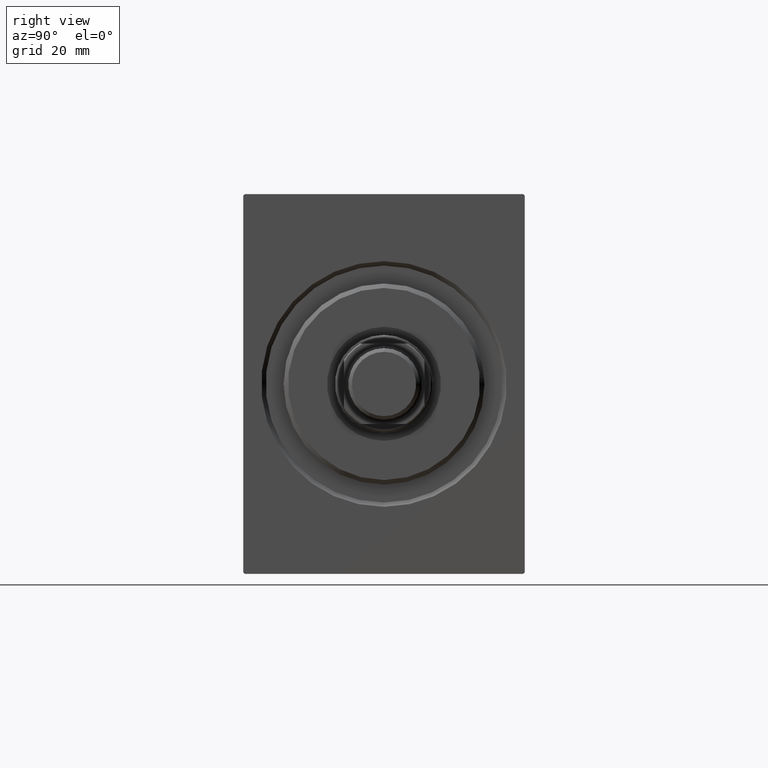
[diagram: clean part render]
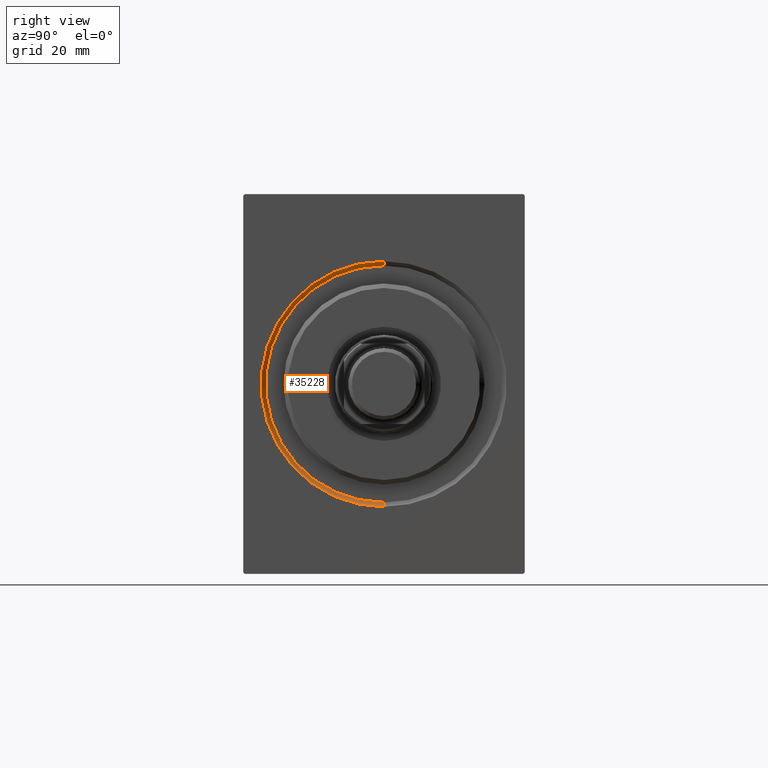
[diagram: same view with one face highlighted and labeled with its STEP entity id]
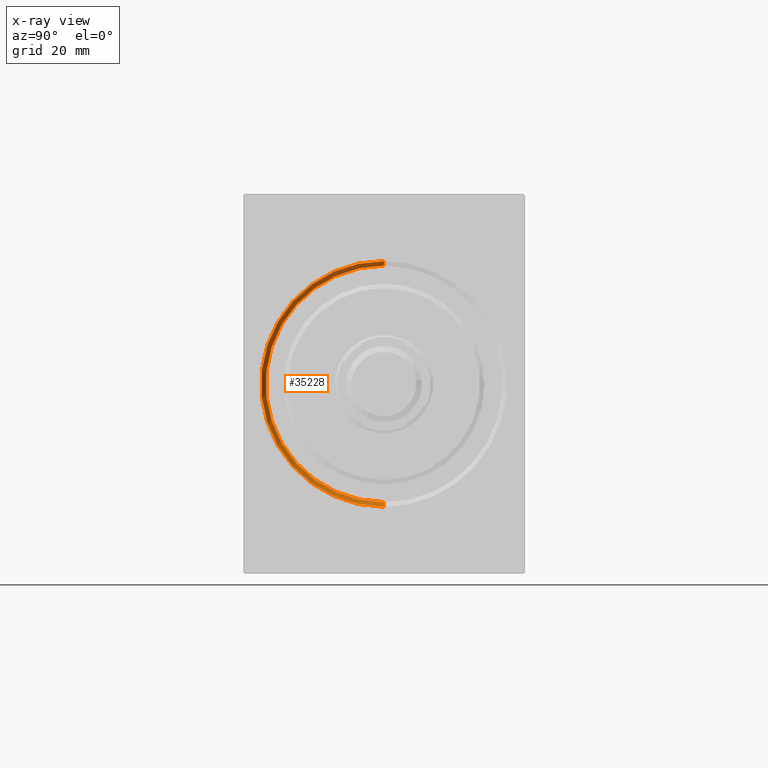
[diagram: x-ray of the same camera — body ghosted, the highlighted face saturated]
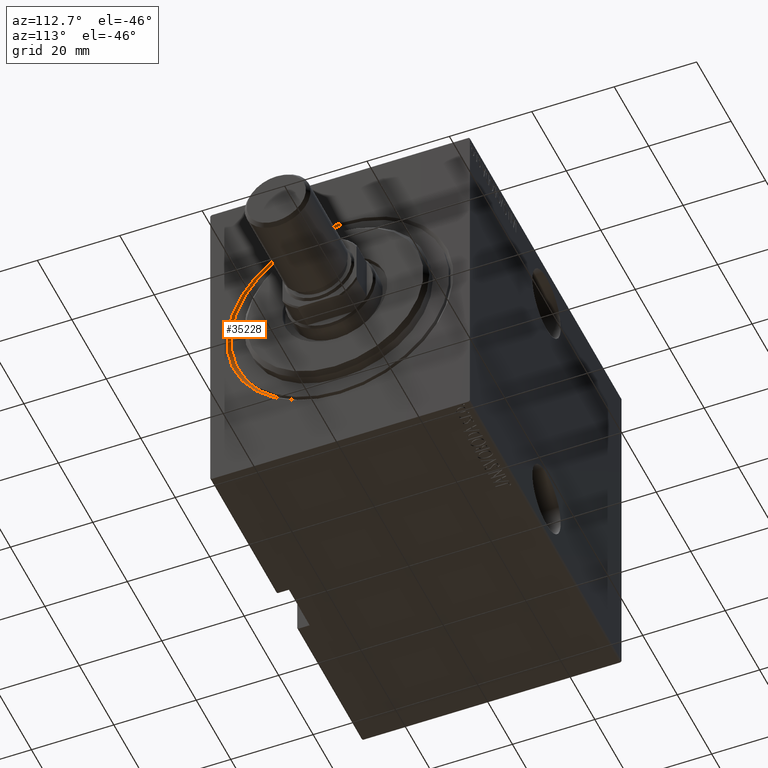
[diagram: same view with one face highlighted and labeled with its STEP entity id]
A machine part, right view. The second image highlights one B-rep face of the part: STEP entity #35228.
The next image is the same camera in x-ray: the body ghosted, the highlighted face saturated — about 0% of this face is hidden behind the body in this view.
A second angle (auxiliary view) of the same face is appended — the face is thin or edge-on in the first view.
In plain terms, the highlighted conical surface has half-angle 45 deg.
Its self-contained STEP definition (entity closure, byte-faithful):
#374 = CIRCLE ( 'NONE', #35366, 26.50000000000000355 ) ;
#1416 = DIRECTION ( 'NONE',  ( -1.000000000000000000, 0.000000000000000000, 0.000000000000000000 ) ) ;
#1868 = CARTESIAN_POINT ( 'NONE',  ( 0.000000000000000000, 3.367778697655221307E-15, -27.49999999999999645 ) ) ;
#2064 = DIRECTION ( 'NONE',  ( 0.000000000000000000, 0.000000000000000000, -1.000000000000000000 ) ) ;
#3388 = DIRECTION ( 'NONE',  ( 1.000000000000000000, 0.000000000000000000, 0.000000000000000000 ) ) ;
#4031 = CARTESIAN_POINT ( 'NONE',  ( 0.000000000000000000, 0.000000000000000000, 27.49999999999999645 ) ) ;
#4940 = DIRECTION ( 'NONE',  ( -0.7071067811865401342, 8.659560562355022838E-17, -0.7071067811865549002 ) ) ;
#7073 = ORIENTED_EDGE ( 'NONE', *, *, #14287, .T. ) ;
#8087 = FACE_OUTER_BOUND ( 'NONE', #24704, .T. ) ;
#10393 = CARTESIAN_POINT ( 'NONE',  ( 0.9999999999999731326, 3.245314017740486554E-15, -26.50000000000000355 ) ) ;
#14287 = EDGE_CURVE ( 'NONE', #33455, #30628, #30313, .T. ) ;
#14321 = DIRECTION ( 'NONE',  ( -0.7071067811865401342, 0.000000000000000000, 0.7071067811865549002 ) ) ;
#14893 = CARTESIAN_POINT ( 'NONE',  ( 0.9999999999999731326, 0.000000000000000000, 0.000000000000000000 ) ) ;
#15047 = LINE ( 'NONE', #31700, #35280 ) ;
#17817 = CARTESIAN_POINT ( 'NONE',  ( 0.9999999999999731326, 0.000000000000000000, 26.50000000000000355 ) ) ;
#20727 = AXIS2_PLACEMENT_3D ( 'NONE', #14893, #24969, #41643 ) ;
#21041 = EDGE_CURVE ( 'NONE', #41765, #30628, #40766, .T. ) ;
#21529 = ORIENTED_EDGE ( 'NONE', *, *, #21041, .F. ) ;
#21835 = AXIS2_PLACEMENT_3D ( 'NONE', #40235, #3388, #26428 ) ;
#22333 = ORIENTED_EDGE ( 'NONE', *, *, #25868, .F. ) ;
#24704 = EDGE_LOOP ( 'NONE', ( #22333, #31682, #7073, #21529 ) ) ;
#24969 = DIRECTION ( 'NONE',  ( -1.000000000000000000, 0.000000000000000000, 0.000000000000000000 ) ) ;
#25868 = EDGE_CURVE ( 'NONE', #41075, #41765, #15047, .T. ) ;
#26428 = DIRECTION ( 'NONE',  ( 0.000000000000000000, 0.000000000000000000, -1.000000000000000000 ) ) ;
#30313 = LINE ( 'NONE', #17817, #34798 ) ;
#30628 = VERTEX_POINT ( 'NONE', #4031 ) ;
#31682 = ORIENTED_EDGE ( 'NONE', *, *, #33567, .F. ) ;
#31700 = CARTESIAN_POINT ( 'NONE',  ( 0.9999999999999731326, 3.245314017740486554E-15, -26.50000000000000355 ) ) ;
#33455 = VERTEX_POINT ( 'NONE', #34755 ) ;
#33567 = EDGE_CURVE ( 'NONE', #33455, #41075, #374, .T. ) ;
#34755 = CARTESIAN_POINT ( 'NONE',  ( 0.9999999999999731326, 0.000000000000000000, 26.50000000000000355 ) ) ;
#34798 = VECTOR ( 'NONE', #14321, 1000.000000000000000 ) ;
#35228 = ADVANCED_FACE ( 'NONE', ( #8087 ), #39640, .F. ) ;
#35280 = VECTOR ( 'NONE', #4940, 1000.000000000000000 ) ;
#35366 = AXIS2_PLACEMENT_3D ( 'NONE', #38264, #1416, #2064 ) ;
#38264 = CARTESIAN_POINT ( 'NONE',  ( 0.9999999999999731326, 0.000000000000000000, 0.000000000000000000 ) ) ;
#39640 = CONICAL_SURFACE ( 'NONE', #20727, 26.50000000000000355, 0.7853981633974587151 ) ;
#40235 = CARTESIAN_POINT ( 'NONE',  ( 0.000000000000000000, 0.000000000000000000, 0.000000000000000000 ) ) ;
#40766 = CIRCLE ( 'NONE', #21835, 27.49999999999999645 ) ;
#41075 = VERTEX_POINT ( 'NONE', #10393 ) ;
#41643 = DIRECTION ( 'NONE',  ( 0.000000000000000000, 0.000000000000000000, 1.000000000000000000 ) ) ;
#41765 = VERTEX_POINT ( 'NONE', #1868 ) ;